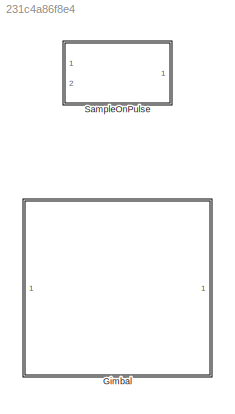
MODEL slx_231c4a86f8e4
KIND library
CONFIG AbsTol = auto
CONFIG EnableMultiTasking = off
CONFIG FixedStep = auto
CONFIG MaxStep = auto
CONFIG MinStep = auto
CONFIG RelTol = 1e-3
CONFIG SampleTimeConstraint = Unconstrained
CONFIG Solver = VariableStepAuto
CONFIG SolverName = VariableStepAuto
CONFIG StartTime = 0.0
CONFIG StopTime = 10.0
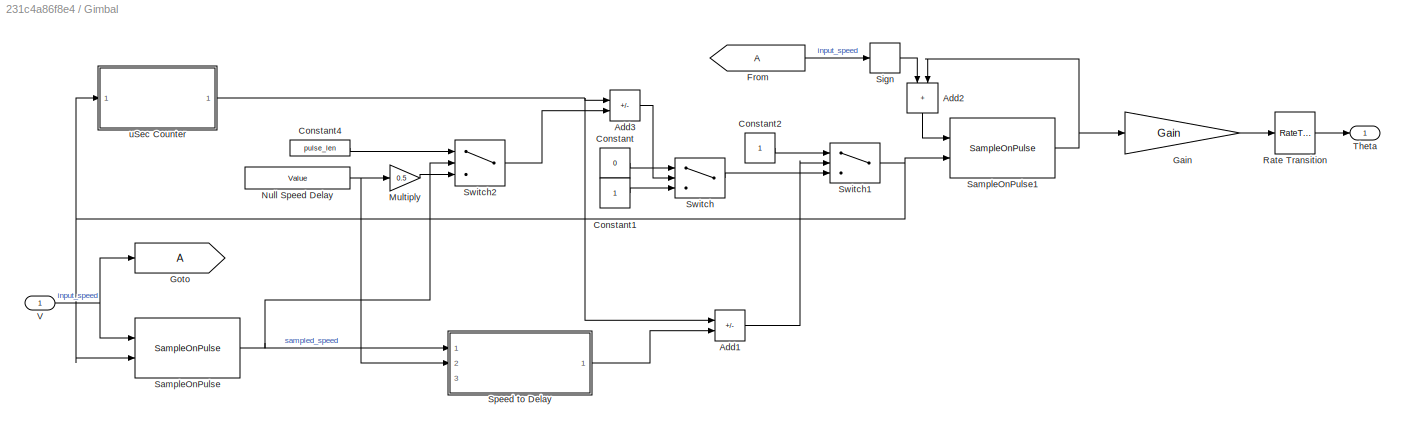
BLOCK [SubSystem] Gimbal
  Ports = [1, 1]
  RequestExecContextInheritance = off
BLOCK [Sum] Gimbal/Add1
  IconShape = rectangular
  Inputs = +-
  Ports = [2, 1]
BLOCK [Sum] Gimbal/Add2
  IconShape = rectangular
  NameLocation = left
  Ports = [2, 1]
BLOCK [Sum] Gimbal/Add3
  IconShape = rectangular
  Inputs = +-
  Ports = [2, 1]
BLOCK [Constant] Gimbal/Constant
  Value = 0
BLOCK [Constant] Gimbal/Constant1
BLOCK [Constant] Gimbal/Constant2
BLOCK [Constant] Gimbal/Constant4
  Value = pulse_len
BLOCK [From] Gimbal/From
  IconDisplay = Tag and signal name
BLOCK [Gain] Gimbal/Gain
  Gain = Gain
  ParamDataTypeStr = Inherit: Inherit from 'Gain'
BLOCK [Goto] Gimbal/Goto
  IconDisplay = Tag and signal name
BLOCK [Gain] Gimbal/Multiply
  Gain = 0.5
BLOCK [Constant] Gimbal/Null Speed Delay
  Value = Value
BLOCK [RateTransition] Gimbal/Rate Transition
  OutPortSampleTime = 1/100
BLOCK [Reference] Gimbal/SampleOnPulse  REF=$bdroot/SampleOnPulse
  Ports = [2, 1]
  SourceBlock = $bdroot/SampleOnPulse
  SourceType = SubSystem
BLOCK [Reference] Gimbal/SampleOnPulse1  REF=$bdroot/SampleOnPulse
  Ports = [2, 1]
  SourceBlock = $bdroot/SampleOnPulse
  SourceType = SubSystem
BLOCK [Signum] Gimbal/Sign
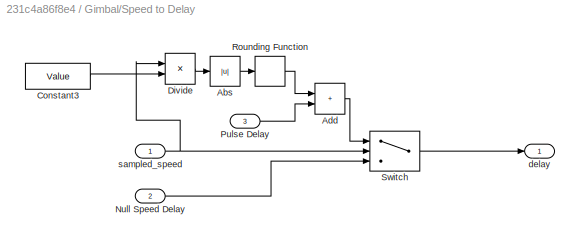
BLOCK [SubSystem] Gimbal/Speed to Delay
  Ports = [3, 1]
  RequestExecContextInheritance = off
BLOCK [Abs] Gimbal/Speed to Delay/Abs
  SaturateOnIntegerOverflow = off
BLOCK [Sum] Gimbal/Speed to Delay/Add
  IconShape = rectangular
  Ports = [2, 1]
BLOCK [Constant] Gimbal/Speed to Delay/Constant3
  Value = Value
BLOCK [Product] Gimbal/Speed to Delay/Divide
  Inputs = /*
  Ports = [2, 1]
BLOCK [Inport] Gimbal/Speed to Delay/Null Speed Delay
  Port = 2
BLOCK [Inport] Gimbal/Speed to Delay/Pulse Delay
  Port = 3
BLOCK [Rounding] Gimbal/Speed to Delay/Rounding Function
BLOCK [Switch] Gimbal/Speed to Delay/Switch
  Criteria = u2 ~= 0
  InputSameDT = off
  SaturateOnIntegerOverflow = off
BLOCK [Outport] Gimbal/Speed to Delay/delay
BLOCK [Inport] Gimbal/Speed to Delay/sampled_speed
BLOCK [Switch] Gimbal/Switch
  Criteria = u2 > Threshold
  InputSameDT = off
  SaturateOnIntegerOverflow = off
BLOCK [Switch] Gimbal/Switch1
  Criteria = u2 > Threshold
  InputSameDT = off
  SaturateOnIntegerOverflow = off
BLOCK [Switch] Gimbal/Switch2
  Criteria = u2 > Threshold
  InputSameDT = off
  SaturateOnIntegerOverflow = off
BLOCK [Outport] Gimbal/Theta
BLOCK [Inport] Gimbal/V
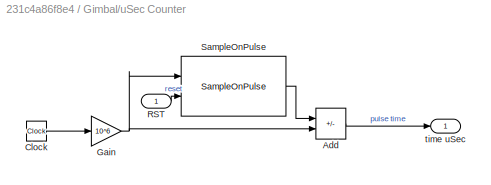
BLOCK [SubSystem] Gimbal/uSec Counter
  Ports = [1, 1]
  RequestExecContextInheritance = off
BLOCK [Sum] Gimbal/uSec Counter/Add
  IconShape = rectangular
  Inputs = -+
  Ports = [2, 1]
BLOCK [Clock] Gimbal/uSec Counter/Clock
BLOCK [Gain] Gimbal/uSec Counter/Gain
  Gain = 10^6
BLOCK [Inport] Gimbal/uSec Counter/RST
BLOCK [Reference] Gimbal/uSec Counter/SampleOnPulse  REF=$bdroot/SampleOnPulse
  Ports = [2, 1]
  SourceBlock = $bdroot/SampleOnPulse
  SourceType = SubSystem
BLOCK [Outport] Gimbal/uSec Counter/time uSec
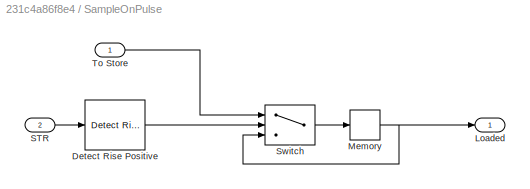
BLOCK [SubSystem] SampleOnPulse
  Ports = [2, 1]
  RequestExecContextInheritance = off
BLOCK [Reference] SampleOnPulse/Detect Rise Positive  REF=simulink/Logic and Bit
Operations/Detect Rise
Positive
  Ports = [1, 1]
  SourceBlock = simulink/Logic and Bit\nOperations/Detect Rise\nPositive
  SourceProductBaseCode = SL
  SourceType = Detect Rise Positive
BLOCK [Outport] SampleOnPulse/Loaded
BLOCK [Memory] SampleOnPulse/Memory
  InheritSampleTime = on
BLOCK [Inport] SampleOnPulse/STR
  Port = 2
BLOCK [Switch] SampleOnPulse/Switch
  Criteria = u2 > Threshold
  InputSameDT = off
  SaturateOnIntegerOverflow = off
BLOCK [Inport] SampleOnPulse/To Store
LINE Gimbal/Add1:1 -> Gimbal/Switch1:2
LINE Gimbal/Add2:1 -> Gimbal/SampleOnPulse1:1
LINE Gimbal/Add3:1 -> Gimbal/Switch:2
LINE Gimbal/Constant1:1 -> Gimbal/Switch:3
LINE Gimbal/Constant2:1 -> Gimbal/Switch1:1
LINE Gimbal/Constant4:1 -> Gimbal/Switch2:1
LINE Gimbal/Constant:1 -> Gimbal/Switch:1
LINE Gimbal/From:1 -> Gimbal/Sign:1
LINE Gimbal/Gain:1 -> Gimbal/Rate Transition:1
LINE Gimbal/Multiply:1 -> Gimbal/Switch2:3
NET Gimbal/Null Speed Delay:1 -> Gimbal/Multiply:1, Gimbal/Speed to Delay:2
LINE Gimbal/Rate Transition:1 -> Gimbal/Theta:1
NET Gimbal/SampleOnPulse1:1 -> Gimbal/Add2:2, Gimbal/Gain:1
NET Gimbal/SampleOnPulse:1 -> Gimbal/Speed to Delay:1, Gimbal/Switch2:2
LINE Gimbal/Sign:1 -> Gimbal/Add2:1
LINE Gimbal/Speed to Delay/Abs:1 -> Gimbal/Speed to Delay/Rounding Function:1
LINE Gimbal/Speed to Delay/Add:1 -> Gimbal/Speed to Delay/Switch:1
LINE Gimbal/Speed to Delay/Constant3:1 -> Gimbal/Speed to Delay/Divide:2
LINE Gimbal/Speed to Delay/Divide:1 -> Gimbal/Speed to Delay/Abs:1
LINE Gimbal/Speed to Delay/Null Speed Delay:1 -> Gimbal/Speed to Delay/Switch:3
LINE Gimbal/Speed to Delay/Pulse Delay:1 -> Gimbal/Speed to Delay/Add:2
LINE Gimbal/Speed to Delay/Rounding Function:1 -> Gimbal/Speed to Delay/Add:1
LINE Gimbal/Speed to Delay/Switch:1 -> Gimbal/Speed to Delay/delay:1
NET Gimbal/Speed to Delay/sampled_speed:1 -> Gimbal/Speed to Delay/Divide:1, Gimbal/Speed to Delay/Switch:2
LINE Gimbal/Speed to Delay:1 -> Gimbal/Add1:2
NET Gimbal/Switch1:1 -> Gimbal/SampleOnPulse1:2, Gimbal/SampleOnPulse:2, Gimbal/uSec Counter:1
LINE Gimbal/Switch2:1 -> Gimbal/Add3:2
LINE Gimbal/Switch:1 -> Gimbal/Switch1:3
NET Gimbal/V:1 -> Gimbal/Goto:1, Gimbal/SampleOnPulse:1
LINE Gimbal/uSec Counter/Add:1 -> Gimbal/uSec Counter/time uSec:1
LINE Gimbal/uSec Counter/Clock:1 -> Gimbal/uSec Counter/Gain:1
NET Gimbal/uSec Counter/Gain:1 -> Gimbal/uSec Counter/Add:2, Gimbal/uSec Counter/SampleOnPulse:1
LINE Gimbal/uSec Counter/RST:1 -> Gimbal/uSec Counter/SampleOnPulse:2
LINE Gimbal/uSec Counter/SampleOnPulse:1 -> Gimbal/uSec Counter/Add:1
NET Gimbal/uSec Counter:1 -> Gimbal/Add1:1, Gimbal/Add3:1
LINE SampleOnPulse/Detect Rise Positive:1 -> SampleOnPulse/Switch:2
NET SampleOnPulse/Memory:1 -> SampleOnPulse/Loaded:1, SampleOnPulse/Switch:3
LINE SampleOnPulse/STR:1 -> SampleOnPulse/Detect Rise Positive:1
LINE SampleOnPulse/Switch:1 -> SampleOnPulse/Memory:1
LINE SampleOnPulse/To Store:1 -> SampleOnPulse/Switch:1
note: NET lines group one-source signal fan-out (src -> all destinations, sorted); 1:1 wires keep LINE
